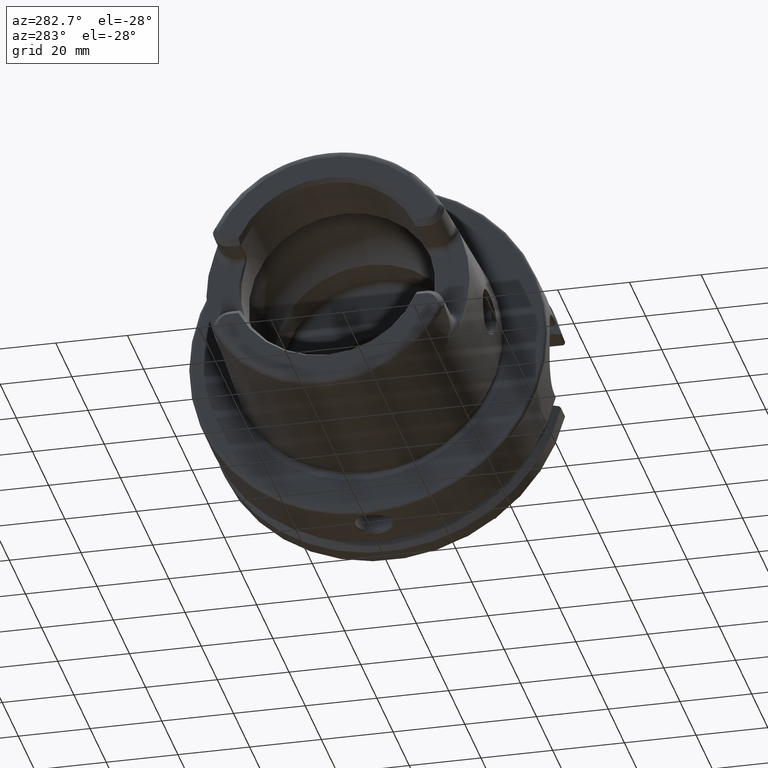
[diagram: clean part render]
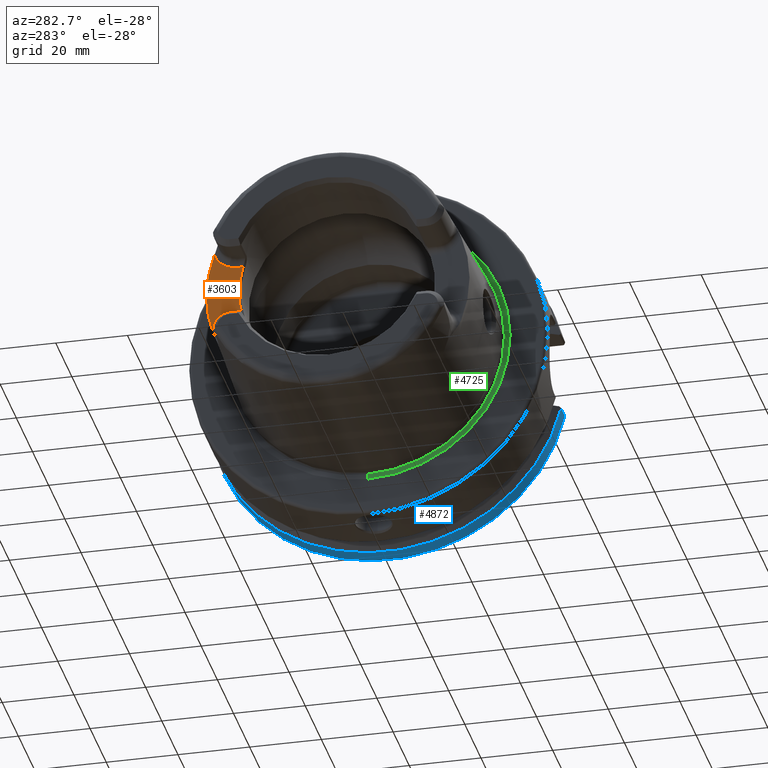
[diagram: same view with three faces highlighted in distinct colors, each labeled with its STEP entity id]
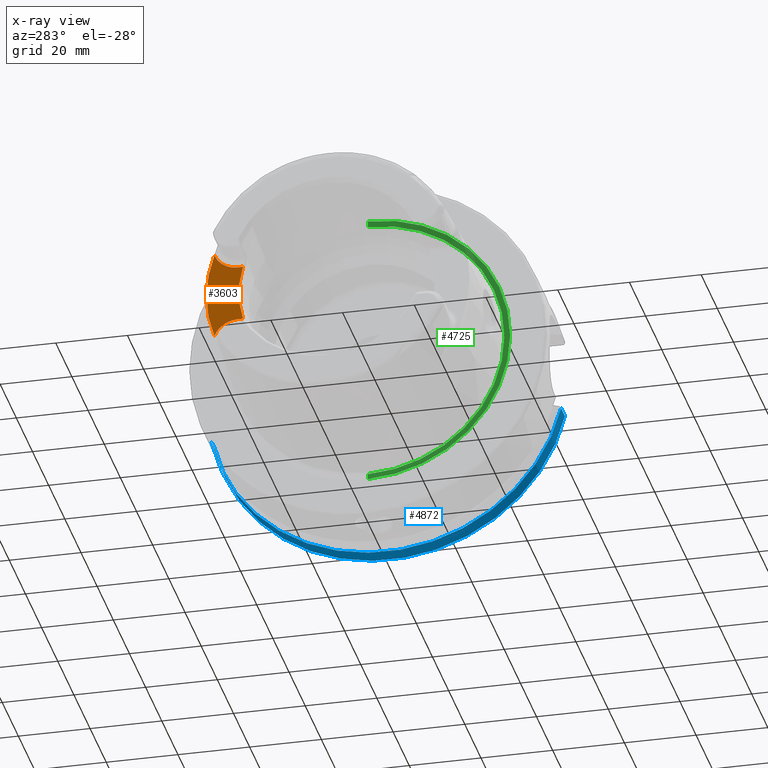
[diagram: x-ray of the same camera — body ghosted, the three highlighted faces saturated]
A machine part, auxiliary view with three faces highlighted in distinct colors.
The next image is the same camera in x-ray (body ghosted, the three faces saturated) — at least one of them is partly hidden behind the body in this view.
Their STEP definitions:

[orange] entity #3603 — the highlighted planar face has unit normal (1, 0, 0).
#195=CARTESIAN_POINT('',(-4.E1,-3.108624468950E-13,-6.261657858886E-14));
#196=DIRECTION('',(-1.E0,0.E0,0.E0));
#197=DIRECTION('',(0.E0,9.549810934720E-1,2.966666666667E-1));
#198=AXIS2_PLACEMENT_3D('',#195,#196,#197);
#200=DIRECTION('',(3.388595954423E-9,-9.999999999999E-1,-3.979276993557E-7));
#201=VECTOR('',#200,1.585510719447E0);
#202=CARTESIAN_POINT('',(-4.E1,2.736999999763E1,-8.010000000698E0));
#203=LINE('',#202,#201);
#204=CARTESIAN_POINT('',(-4.E1,2.737E1,-1.489E1));
#205=DIRECTION('',(1.E0,0.E0,0.E0));
#206=DIRECTION('',(0.E0,9.329763917042E-1,3.599375675344E-1));
#207=AXIS2_PLACEMENT_3D('',#204,#205,#206);
#209=CARTESIAN_POINT('',(-4.E1,0.E0,0.E0));
#210=DIRECTION('',(1.E0,0.E0,0.E0));
#211=DIRECTION('',(0.E0,9.386572714716E-1,-3.448514560120E-1));
#212=AXIS2_PLACEMENT_3D('',#209,#210,#211);
#214=CARTESIAN_POINT('',(-4.E1,2.737E1,1.489E1));
#215=DIRECTION('',(-1.E0,0.E0,0.E0));
#216=DIRECTION('',(0.E0,9.329763917042E-1,-3.599375675344E-1));
#217=AXIS2_PLACEMENT_3D('',#214,#215,#216);
#219=DIRECTION('',(5.671687475202E-9,-9.999999999998E-1,6.823233049794E-7));
#220=VECTOR('',#219,1.585510894542E0);
#221=CARTESIAN_POINT('',(-4.E1,2.736999999887E1,8.010000000311E0));
#222=LINE('',#221,#220);
#1125=CARTESIAN_POINT('',(-3.999999999463E1,2.578448927818E1,
-8.010000631616E0));
#3086=CARTESIAN_POINT('',(-4.E1,3.378887757493E1,-1.241362953536E1));
#3087=CARTESIAN_POINT('',(-4.E1,2.737E1,-8.01E0));
#3088=VERTEX_POINT('',#3086);
#3089=VERTEX_POINT('',#3087);
#3098=CARTESIAN_POINT('',(-4.E1,3.378887757493E1,1.241362953536E1));
#3099=CARTESIAN_POINT('',(-4.E1,2.737E1,8.01E0));
#3100=VERTEX_POINT('',#3098);
#3101=VERTEX_POINT('',#3099);
#3104=VERTEX_POINT('',#1125);
#3108=CARTESIAN_POINT('',(-4.E1,2.578448952374E1,8.01E0));
#3109=VERTEX_POINT('',#3108);
#3586=CARTESIAN_POINT('',(-4.E1,0.E0,1.001E1));
#3587=DIRECTION('',(1.E0,0.E0,0.E0));
#3588=DIRECTION('',(0.E0,0.E0,-1.E0));
#3589=AXIS2_PLACEMENT_3D('',#3586,#3587,#3588);
#3590=PLANE('',#3589);
#3592=ORIENTED_EDGE('',*,*,#3591,.T.);
#3594=ORIENTED_EDGE('',*,*,#3593,.F.);
#3595=ORIENTED_EDGE('',*,*,#3577,.F.);
#3596=ORIENTED_EDGE('',*,*,#3475,.T.);
#3598=ORIENTED_EDGE('',*,*,#3597,.T.);
#3600=ORIENTED_EDGE('',*,*,#3599,.T.);
#3601=EDGE_LOOP('',(#3592,#3594,#3595,#3596,#3598,#3600));
#3602=FACE_OUTER_BOUND('',#3601,.F.);
#3603=ADVANCED_FACE('',(#3602),#3590,.F.);
#199=CIRCLE('',#198,2.7E1);
#208=CIRCLE('',#207,6.88E0);
#213=CIRCLE('',#212,3.599703385023E1);
#218=CIRCLE('',#217,6.88E0);
#3475=EDGE_CURVE('',#3088,#3100,#213,.T.);
#3577=EDGE_CURVE('',#3088,#3089,#208,.T.);
#3591=EDGE_CURVE('',#3109,#3104,#199,.T.);
#3593=EDGE_CURVE('',#3089,#3104,#203,.T.);
#3597=EDGE_CURVE('',#3100,#3101,#218,.T.);
#3599=EDGE_CURVE('',#3101,#3109,#222,.T.);

[blue] entity #4872 — the highlighted cylindrical surface (partial cylindrical patch) has radius 50 mm, axis along (1, 0, 0).
#1372=DIRECTION('',(1.E0,0.E0,0.E0));
#1373=VECTOR('',#1372,4.752404735808E0);
#1374=CARTESIAN_POINT('',(2.324759526419E1,4.890531149727E1,-1.040531149727E1));
#1375=LINE('',#1374,#1373);
#1376=DIRECTION('',(1.E0,0.E0,0.E0));
#1377=VECTOR('',#1376,4.752404735808E0);
#1378=CARTESIAN_POINT('',(2.324759526419E1,-4.866725793949E1,
-1.146725793949E1));
#1379=LINE('',#1378,#1377);
#1480=CARTESIAN_POINT('',(2.8E1,0.E0,0.E0));
#1481=DIRECTION('',(-1.E0,0.E0,0.E0));
#1482=DIRECTION('',(0.E0,9.781062299454E-1,-2.081062299454E-1));
#1483=AXIS2_PLACEMENT_3D('',#1480,#1481,#1482);
#1490=CARTESIAN_POINT('',(2.8E1,-4.866725793949E1,-1.146725793949E1));
#1626=CARTESIAN_POINT('',(2.8E1,4.890531149727E1,-1.040531149727E1));
#1741=CARTESIAN_POINT('',(2.324759526419E1,-4.866725793949E1,
-1.146725793949E1));
#1743=CARTESIAN_POINT('',(2.324759526419E1,0.E0,0.E0));
#1744=DIRECTION('',(1.E0,0.E0,0.E0));
#1745=DIRECTION('',(0.E0,-9.733451587899E-1,-2.293451587899E-1));
#1746=AXIS2_PLACEMENT_3D('',#1743,#1744,#1745);
#1748=CARTESIAN_POINT('',(2.324759526419E1,4.890531149727E1,-1.040531149727E1));
#3243=VERTEX_POINT('',#1748);
#3260=VERTEX_POINT('',#1741);
#3278=VERTEX_POINT('',#1490);
#3283=VERTEX_POINT('',#1626);
#4857=CARTESIAN_POINT('',(0.E0,0.E0,0.E0));
#4858=DIRECTION('',(1.E0,0.E0,0.E0));
#4859=DIRECTION('',(0.E0,0.E0,1.E0));
#4860=AXIS2_PLACEMENT_3D('',#4857,#4858,#4859);
#4861=CYLINDRICAL_SURFACE('',#4860,5.E1);
#4863=ORIENTED_EDGE('',*,*,#4862,.F.);
#4865=ORIENTED_EDGE('',*,*,#4864,.F.);
#4867=ORIENTED_EDGE('',*,*,#4866,.F.);
#4869=ORIENTED_EDGE('',*,*,#4868,.T.);
#4870=EDGE_LOOP('',(#4863,#4865,#4867,#4869));
#4871=FACE_OUTER_BOUND('',#4870,.F.);
#4872=ADVANCED_FACE('',(#4871),#4861,.T.);
#1484=CIRCLE('',#1483,5.E1);
#1747=CIRCLE('',#1746,5.E1);
#4862=EDGE_CURVE('',#3283,#3278,#1484,.T.);
#4864=EDGE_CURVE('',#3243,#3283,#1375,.T.);
#4866=EDGE_CURVE('',#3260,#3243,#1747,.T.);
#4868=EDGE_CURVE('',#3260,#3278,#1379,.T.);

[green] entity #4725 — the highlighted conical surface has half-angle 82 deg.
#1213=CARTESIAN_POINT('',(2.310956174832E-1,0.E0,0.E0));
#1214=DIRECTION('',(-1.E0,0.E0,0.E0));
#1215=DIRECTION('',(0.E0,0.E0,-1.E0));
#1216=AXIS2_PLACEMENT_3D('',#1213,#1214,#1215);
#1218=DIRECTION('',(-1.391731009601E-1,8.749121540809E-13,9.902680687416E-1));
#1219=VECTOR('',#1218,1.660490539405E0);
#1220=CARTESIAN_POINT('',(2.310956174839E-1,-1.457643022583E-12,
3.803786924038E1));
#1221=LINE('',#1220,#1219);
#1222=DIRECTION('',(-1.391731009601E-1,-8.733834041103E-13,-9.902680687416E-1));
#1223=VECTOR('',#1222,1.660490539405E0);
#1224=CARTESIAN_POINT('',(2.310956174839E-1,1.455104547720E-12,
-3.803786924038E1));
#1225=LINE('',#1224,#1223);
#1255=CARTESIAN_POINT('',(0.E0,0.E0,0.E0));
#1256=DIRECTION('',(1.E0,0.E0,0.E0));
#1257=DIRECTION('',(0.E0,0.E0,1.E0));
#1258=AXIS2_PLACEMENT_3D('',#1255,#1256,#1257);
#2957=CARTESIAN_POINT('',(0.E0,0.E0,-3.96822E1));
#2958=CARTESIAN_POINT('',(0.E0,0.E0,3.96822E1));
#2959=VERTEX_POINT('',#2957);
#2960=VERTEX_POINT('',#2958);
#2967=CARTESIAN_POINT('',(2.310956174832E-1,0.E0,-3.803786924038E1));
#2968=CARTESIAN_POINT('',(2.310956174832E-1,0.E0,3.803786924038E1));
#2969=VERTEX_POINT('',#2967);
#2970=VERTEX_POINT('',#2968);
#4711=CARTESIAN_POINT('',(1.155478087416E-1,0.E0,0.E0));
#4712=DIRECTION('',(-1.E0,0.E0,0.E0));
#4713=DIRECTION('',(0.E0,0.E0,-1.E0));
#4714=AXIS2_PLACEMENT_3D('',#4711,#4712,#4713);
#4715=CONICAL_SURFACE('',#4714,3.886003462019E1,8.2E1);
#4716=ORIENTED_EDGE('',*,*,#4701,.T.);
#4718=ORIENTED_EDGE('',*,*,#4717,.T.);
#4720=ORIENTED_EDGE('',*,*,#4719,.T.);
#4722=ORIENTED_EDGE('',*,*,#4721,.F.);
#4723=EDGE_LOOP('',(#4716,#4718,#4720,#4722));
#4724=FACE_OUTER_BOUND('',#4723,.F.);
#4725=ADVANCED_FACE('',(#4724),#4715,.F.);
#1217=CIRCLE('',#1216,3.803786924038E1);
#1259=CIRCLE('',#1258,3.96822E1);
#4701=EDGE_CURVE('',#2969,#2970,#1217,.T.);
#4717=EDGE_CURVE('',#2970,#2960,#1221,.T.);
#4719=EDGE_CURVE('',#2960,#2959,#1259,.T.);
#4721=EDGE_CURVE('',#2969,#2959,#1225,.T.);